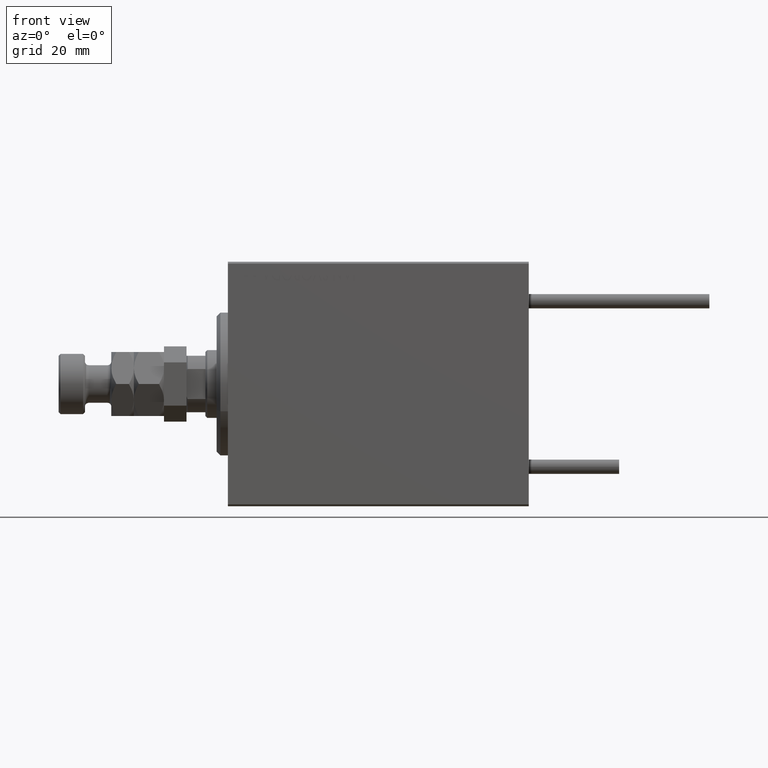
[diagram: clean part render]
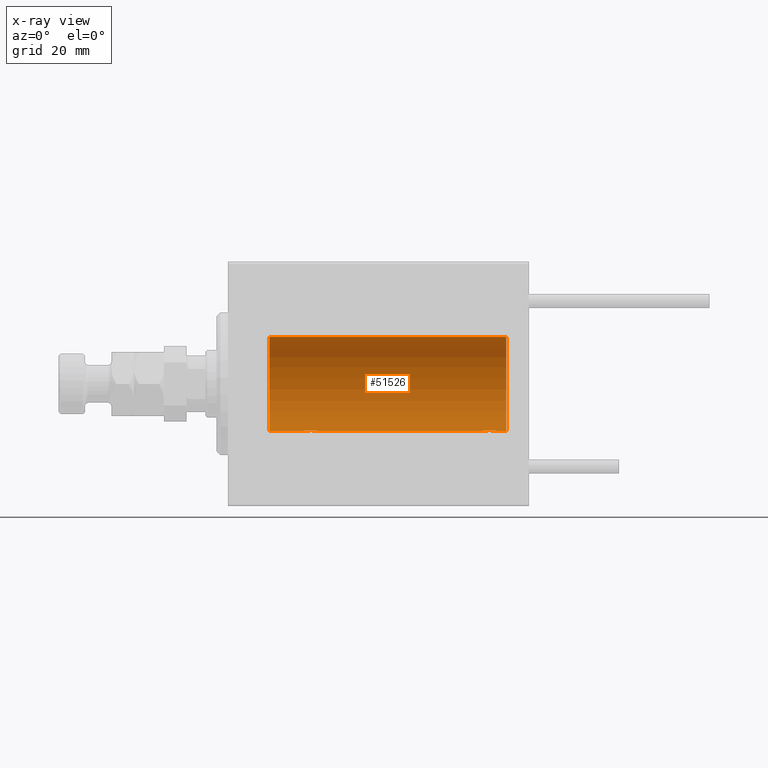
[diagram: x-ray — body ghosted, one internal face saturated and labeled with its STEP entity id]
A machine part, front view, then the same camera in x-ray: the body is ghosted and one INTERNAL B-rep face — a face not visible from any outside direction — is saturated and labeled: STEP entity #51526.
In plain terms, the highlighted cylindrical surface (partial cylindrical patch) has radius 12.5 mm, axis along (-1, -0, -0).
Its self-contained STEP definition (entity closure, byte-faithful):
#202 = CARTESIAN_POINT ( 'NONE',  ( 23.21980790594580313, 1.590288205413975309, -12.39864157855465088 ) ) ;
#411 = CARTESIAN_POINT ( 'NONE',  ( 70.71980790594581379, 1.590288205413965539, -12.39864157855464732 ) ) ;
#458 = CARTESIAN_POINT ( 'NONE',  ( 23.73470742397611843, 1.003863686549172352, -12.46009879577771606 ) ) ;
#946 = CIRCLE ( 'NONE', #37860, 12.50000000000000000 ) ;
#1200 = CARTESIAN_POINT ( 'NONE',  ( 71.29742491916155700, 0.8868029758979329991, -12.46909283808506430 ) ) ;
#4590 = CARTESIAN_POINT ( 'NONE',  ( 74.00000000000000000, 0.000000000000000000, 12.50000000000000000 ) ) ;
#4616 = CARTESIAN_POINT ( 'NONE',  ( 70.38656313533016373, 1.797558627508987428, -12.37018026341339016 ) ) ;
#4876 = CARTESIAN_POINT ( 'NONE',  ( 71.50000000000001421, 1.530808426270318106E-15, -12.50000000000000000 ) ) ;
#5141 = CARTESIAN_POINT ( 'NONE',  ( 69.76269462454600045, 1.986986967296526352, -12.34109209020653530 ) ) ;
#5880 = VECTOR ( 'NONE', #31029, 1000.000000000000000 ) ;
#6211 = CARTESIAN_POINT ( 'NONE',  ( 74.00000000000000000, 1.530808498934191521E-15, -12.50000000000000000 ) ) ;
#6895 = VERTEX_POINT ( 'NONE', #21530 ) ;
#7306 = CARTESIAN_POINT ( 'NONE',  ( 20.10252270298193622, 0.6455696738844897142, -12.48390768591463207 ) ) ;
#7568 = CARTESIAN_POINT ( 'NONE',  ( 19.99999999999999645, -3.966047509268588167E-15, -12.50000000000000000 ) ) ;
#7830 = CARTESIAN_POINT ( 'NONE',  ( 19.99999999999999645, 0.1323736289504319763, -12.50000000000000000 ) ) ;
#8085 = CARTESIAN_POINT ( 'NONE',  ( 22.51937350851555308, 1.935814255713574905, -12.34922241902463114 ) ) ;
#8349 = CARTESIAN_POINT ( 'NONE',  ( 24.00000000000000711, 0.1306394121199392910, -12.50000000000000533 ) ) ;
#8528 = LINE ( 'NONE', #4590, #12553 ) ;
#8558 = CARTESIAN_POINT ( 'NONE',  ( 70.01937350851554243, 1.935814255713560472, -12.34922241902463114 ) ) ;
#8812 = CARTESIAN_POINT ( 'NONE',  ( 71.23470742397613265, 1.003863686549164580, -12.46009879577771073 ) ) ;
#8953 = EDGE_CURVE ( 'NONE', #50680, #10642, #8528, .T. ) ;
#9331 = CARTESIAN_POINT ( 'NONE',  ( 70.14415233770294833, 1.897967064543078619, -12.35517291625592051 ) ) ;
#9587 = CARTESIAN_POINT ( 'NONE',  ( 67.51301208516348140, 0.2624928479599822340, -12.49789934882883458 ) ) ;
#10214 = EDGE_CURVE ( 'NONE', #6895, #49940, #47594, .T. ) ;
#10522 = ORIENTED_EDGE ( 'NONE', *, *, #17274, .T. ) ;
#10642 = VERTEX_POINT ( 'NONE', #47531 ) ;
#11042 = ORIENTED_EDGE ( 'NONE', *, *, #10214, .F. ) ;
#11438 = CARTESIAN_POINT ( 'NONE',  ( 74.00000000000000000, 1.530808498934191521E-15, -12.50000000000000000 ) ) ;
#11507 = CARTESIAN_POINT ( 'NONE',  ( 22.26269462454597914, 1.986986967296540119, -12.34109209020652465 ) ) ;
#11847 = AXIS2_PLACEMENT_3D ( 'NONE', #30828, #43182, #23205 ) ;
#12286 = CARTESIAN_POINT ( 'NONE',  ( 23.93561774521849728, 0.5201193324741352209, -12.48983485452574982 ) ) ;
#12499 = CARTESIAN_POINT ( 'NONE',  ( 67.70300788371383760, 0.8876934327478049891, -12.46903010196599659 ) ) ;
#12553 = VECTOR ( 'NONE', #20603, 1000.000000000000000 ) ;
#12713 = EDGE_CURVE ( 'NONE', #41686, #14970, #42210, .T. ) ;
#13543 = CARTESIAN_POINT ( 'NONE',  ( 67.56395648222637362, 0.5184196815545968340, -12.48990118705761354 ) ) ;
#14970 = VERTEX_POINT ( 'NONE', #17041 ) ;
#15458 = CARTESIAN_POINT ( 'NONE',  ( 20.26446744561862801, 1.002494658017155871, -12.46021263690096958 ) ) ;
#15585 = CYLINDRICAL_SURFACE ( 'NONE', #11847, 12.50000000000000000 ) ;
#15694 = CARTESIAN_POINT ( 'NONE',  ( 74.00000000000000000, 0.000000000000000000, 0.000000000000000000 ) ) ;
#16235 = CARTESIAN_POINT ( 'NONE',  ( 23.32102833500698225, 1.507394620545640773, -12.40913174964213184 ) ) ;
#16447 = CARTESIAN_POINT ( 'NONE',  ( 67.50000000000000000, 0.1323736289504252872, -12.50000000000000178 ) ) ;
#16495 = CARTESIAN_POINT ( 'NONE',  ( 24.00000000000000000, 1.530808426277417854E-15, -12.50000000000000000 ) ) ;
#16974 = CARTESIAN_POINT ( 'NONE',  ( 71.43561774521850793, 0.5201193324741325563, -12.48983485452575337 ) ) ;
#17041 = CARTESIAN_POINT ( 'NONE',  ( 10.99999999999999645, 1.530808498934191521E-15, -12.50000000000000000 ) ) ;
#17228 = CARTESIAN_POINT ( 'NONE',  ( 68.97436412829507901, 1.947190906025030976, -12.34781876294798408 ) ) ;
#17274 = EDGE_CURVE ( 'NONE', #41686, #33915, #47953, .T. ) ;
#17545 = CARTESIAN_POINT ( 'NONE',  ( 71.50000000000001421, 1.530808426270318106E-15, -12.50000000000000000 ) ) ;
#19054 = CARTESIAN_POINT ( 'NONE',  ( 67.50000000000000000, -8.176262823880599614E-15, -12.50000000000000000 ) ) ;
#19422 = CARTESIAN_POINT ( 'NONE',  ( 74.00000000000000000, 0.000000000000000000, 12.50000000000000000 ) ) ;
#20164 = CIRCLE ( 'NONE', #31071, 12.50000000000000000 ) ;
#20384 = CARTESIAN_POINT ( 'NONE',  ( 67.90963319990595437, 1.219754986802266128, -12.44082361696003503 ) ) ;
#20603 = DIRECTION ( 'NONE',  ( -1.000000000000000000, -0.000000000000000000, -0.000000000000000000 ) ) ;
#20633 = CARTESIAN_POINT ( 'NONE',  ( 71.39773031393660574, 0.6448065707252970125, -12.48394649977302429 ) ) ;
#20891 = CARTESIAN_POINT ( 'NONE',  ( 69.23788193668377744, 1.999901172190666765, -12.33897869807161385 ) ) ;
#21530 = CARTESIAN_POINT ( 'NONE',  ( 74.00000000000000000, 1.530808498934191521E-15, -12.50000000000000000 ) ) ;
#22231 = DIRECTION ( 'NONE',  ( -1.000000000000000000, -0.000000000000000000, -0.000000000000000000 ) ) ;
#23205 = DIRECTION ( 'NONE',  ( 0.000000000000000000, 0.000000000000000000, 1.000000000000000000 ) ) ;
#23605 = CARTESIAN_POINT ( 'NONE',  ( 20.01301208516349206, 0.2624928479599882847, -12.49789934882883458 ) ) ;
#23863 = CARTESIAN_POINT ( 'NONE',  ( 20.06395648222636652, 0.5184196815546032733, -12.48990118705761532 ) ) ;
#24454 = ORIENTED_EDGE ( 'NONE', *, *, #8953, .T. ) ;
#25862 = ORIENTED_EDGE ( 'NONE', *, *, #26238, .T. ) ;
#26238 = EDGE_CURVE ( 'NONE', #10642, #14970, #20164, .T. ) ;
#27109 = VECTOR ( 'NONE', #31155, 1000.000000000000000 ) ;
#27551 = CARTESIAN_POINT ( 'NONE',  ( 22.64415233770293412, 1.897967064543090165, -12.35517291625592051 ) ) ;
#27713 = B_SPLINE_CURVE_WITH_KNOTS ( 'NONE', 3,
 ( #33256, #16447, #9587, #13543, #49289, #12499, #36424, #20384, #44820, #41401, #41143, #17228, #20891, #45335, #5141, #8558, #9331, #4616, #29564, #411, #45597, #40877, #49042, #8812, #1200, #20633, #16974, #29041, #36939, #4876 ),
 .UNSPECIFIED., .F., .F.,
 ( 4, 2, 2, 2, 2, 2, 2, 2, 2, 2, 2, 2, 2, 2, 4 ),
 ( 1.893746017792005895E-18, 0.0003914362731607732410, 0.0007828725463215445305, 0.001174308819482315983, 0.001565745092643087326, 0.002348617638964600740, 0.003131490185286113937, 0.003522926458446871186, 0.003914362731607627134, 0.004305799004768384383, 0.004697235277929140765, 0.005088671551089898014, 0.005480107824250654396, 0.005871544097411410777, 0.006262980370572168026 ),
 .UNSPECIFIED. ) ;
#27995 = LINE ( 'NONE', #11438, #27109 ) ;
#28063 = CARTESIAN_POINT ( 'NONE',  ( 21.47436412829510033, 1.947190906025044077, -12.34781876294798053 ) ) ;
#28127 = VERTEX_POINT ( 'NONE', #19054 ) ;
#28318 = CARTESIAN_POINT ( 'NONE',  ( 23.98690384766256400, 0.2633501011236120681, -12.49788564268284041 ) ) ;
#29041 = CARTESIAN_POINT ( 'NONE',  ( 71.48690384766258887, 0.2633501011236116240, -12.49788564268284041 ) ) ;
#29564 = CARTESIAN_POINT ( 'NONE',  ( 70.50335814299182857, 1.734998657226755947, -12.37922086519035858 ) ) ;
#30828 = CARTESIAN_POINT ( 'NONE',  ( 74.00000000000000000, 0.000000000000000000, 0.000000000000000000 ) ) ;
#30935 = DIRECTION ( 'NONE',  ( -1.000000000000000000, 0.000000000000000000, 0.000000000000000000 ) ) ;
#31029 = DIRECTION ( 'NONE',  ( -1.000000000000000000, -0.000000000000000000, -0.000000000000000000 ) ) ;
#31071 = AXIS2_PLACEMENT_3D ( 'NONE', #38053, #42771, #46716 ) ;
#31155 = DIRECTION ( 'NONE',  ( -1.000000000000000000, -0.000000000000000000, -0.000000000000000000 ) ) ;
#31490 = CARTESIAN_POINT ( 'NONE',  ( 21.73788193668374902, 1.999901172190678533, -12.33897869807161385 ) ) ;
#31547 = VECTOR ( 'NONE', #22231, 1000.000000000000000 ) ;
#31754 = CARTESIAN_POINT ( 'NONE',  ( 23.00335814299181436, 1.734998657226765939, -12.37922086519035325 ) ) ;
#32272 = CARTESIAN_POINT ( 'NONE',  ( 23.50733550364322255, 1.321095788880538136, -12.43034574091277911 ) ) ;
#32424 = EDGE_CURVE ( 'NONE', #28127, #33915, #27995, .T. ) ;
#32622 = CARTESIAN_POINT ( 'NONE',  ( 19.99999999999999645, -3.966047509268588167E-15, -12.50000000000000000 ) ) ;
#33256 = CARTESIAN_POINT ( 'NONE',  ( 67.50000000000000000, -8.176262823880599614E-15, -12.50000000000000000 ) ) ;
#33915 = VERTEX_POINT ( 'NONE', #42112 ) ;
#35695 = CARTESIAN_POINT ( 'NONE',  ( 20.49398366327207910, 1.322451657002076120, -12.43019346654084956 ) ) ;
#35946 = ORIENTED_EDGE ( 'NONE', *, *, #50293, .T. ) ;
#36424 = CARTESIAN_POINT ( 'NONE',  ( 67.76446744561866353, 1.002494658017143658, -12.46021263690097136 ) ) ;
#36470 = CARTESIAN_POINT ( 'NONE',  ( 20.99316879552500481, 1.747608771958139906, -12.37764291807175354 ) ) ;
#36939 = CARTESIAN_POINT ( 'NONE',  ( 71.50000000000002842, 0.1306394121199379033, -12.50000000000000355 ) ) ;
#37860 = AXIS2_PLACEMENT_3D ( 'NONE', #15694, #30935, #43551 ) ;
#38053 = CARTESIAN_POINT ( 'NONE',  ( 10.99999999999999645, 0.000000000000000000, 0.000000000000000000 ) ) ;
#38614 = ORIENTED_EDGE ( 'NONE', *, *, #47946, .F. ) ;
#38977 = FACE_OUTER_BOUND ( 'NONE', #47122, .T. ) ;
#39165 = CARTESIAN_POINT ( 'NONE',  ( 74.00000000000000000, 1.530808498934191521E-15, -12.50000000000000000 ) ) ;
#39882 = CARTESIAN_POINT ( 'NONE',  ( 23.79742491916155700, 0.8868029758979399935, -12.46909283808506430 ) ) ;
#40141 = CARTESIAN_POINT ( 'NONE',  ( 20.40963319990594016, 1.219754986802279451, -12.44082361696003503 ) ) ;
#40877 = CARTESIAN_POINT ( 'NONE',  ( 71.00733550364323321, 1.321095788880530364, -12.43034574091278444 ) ) ;
#41143 = CARTESIAN_POINT ( 'NONE',  ( 68.49316879552500836, 1.747608771958125473, -12.37764291807175709 ) ) ;
#41157 = ORIENTED_EDGE ( 'NONE', *, *, #32424, .F. ) ;
#41401 = CARTESIAN_POINT ( 'NONE',  ( 68.27033506126851137, 1.598680238462352188, -12.39873273758732175 ) ) ;
#41686 = VERTEX_POINT ( 'NONE', #32622 ) ;
#42112 = CARTESIAN_POINT ( 'NONE',  ( 24.00000000000000000, 1.530808426277417854E-15, -12.50000000000000000 ) ) ;
#42210 = LINE ( 'NONE', #6211, #31547 ) ;
#42771 = DIRECTION ( 'NONE',  ( -1.000000000000000000, 0.000000000000000000, 0.000000000000000000 ) ) ;
#43182 = DIRECTION ( 'NONE',  ( -1.000000000000000000, -0.000000000000000000, -0.000000000000000000 ) ) ;
#43551 = DIRECTION ( 'NONE',  ( 0.000000000000000000, 0.000000000000000000, 1.000000000000000000 ) ) ;
#43570 = CARTESIAN_POINT ( 'NONE',  ( 22.88656313533016373, 1.797558627508998086, -12.37018026341338839 ) ) ;
#43832 = CARTESIAN_POINT ( 'NONE',  ( 23.58991408680628155, 1.220297236145721609, -12.44076681548080288 ) ) ;
#44089 = CARTESIAN_POINT ( 'NONE',  ( 22.12992629360264729, 2.000049200055402210, -12.33895470450623044 ) ) ;
#44820 = CARTESIAN_POINT ( 'NONE',  ( 67.99398366327211818, 1.322451657002059910, -12.43019346654085666 ) ) ;
#45335 = CARTESIAN_POINT ( 'NONE',  ( 69.62992629360266506, 2.000049200055388443, -12.33895470450623044 ) ) ;
#45597 = CARTESIAN_POINT ( 'NONE',  ( 70.82102833500700001, 1.507394620545632336, -12.40913174964213539 ) ) ;
#46716 = DIRECTION ( 'NONE',  ( 0.000000000000000000, 0.000000000000000000, 1.000000000000000000 ) ) ;
#47122 = EDGE_LOOP ( 'NONE', ( #11042, #38614, #24454, #25862, #50202, #10522, #41157, #35946 ) ) ;
#47531 = CARTESIAN_POINT ( 'NONE',  ( 10.99999999999999645, 0.000000000000000000, 12.50000000000000000 ) ) ;
#47594 = LINE ( 'NONE', #39165, #5880 ) ;
#47946 = EDGE_CURVE ( 'NONE', #50680, #6895, #946, .T. ) ;
#47953 = B_SPLINE_CURVE_WITH_KNOTS ( 'NONE', 3,
 ( #7568, #7830, #23605, #23863, #7306, #51472, #15458, #40141, #35695, #51723, #36470, #28063, #31490, #44089, #11507, #8085, #27551, #43570, #31754, #202, #16235, #32272, #43832, #458, #39882, #48309, #12286, #28318, #8349, #16495 ),
 .UNSPECIFIED., .F., .F.,
 ( 4, 2, 2, 2, 2, 2, 2, 2, 2, 2, 2, 2, 2, 2, 4 ),
 ( 3.611342868676865251E-19, 0.0003914362731607586585, 0.0007828725463215168833, 0.001174308819482275217, 0.001565745092643033550, 0.002348617638964549999, 0.003131490185286066666, 0.003522926458446830420, 0.003914362731607594174, 0.004305799004768357495, 0.004697235277929121683, 0.005088671551089885003, 0.005480107824250649191, 0.005871544097411412512, 0.006262980370572176700 ),
 .UNSPECIFIED. ) ;
#48309 = CARTESIAN_POINT ( 'NONE',  ( 23.89773031393658087, 0.6448065707253023415, -12.48394649977302073 ) ) ;
#49042 = CARTESIAN_POINT ( 'NONE',  ( 71.08991408680630286, 1.220297236145713393, -12.44076681548080821 ) ) ;
#49289 = CARTESIAN_POINT ( 'NONE',  ( 67.60252270298194333, 0.6455696738844840521, -12.48390768591463384 ) ) ;
#49940 = VERTEX_POINT ( 'NONE', #17545 ) ;
#50202 = ORIENTED_EDGE ( 'NONE', *, *, #12713, .F. ) ;
#50293 = EDGE_CURVE ( 'NONE', #28127, #49940, #27713, .T. ) ;
#50680 = VERTEX_POINT ( 'NONE', #19422 ) ;
#51472 = CARTESIAN_POINT ( 'NONE',  ( 20.20300788371381273, 0.8876934327478117615, -12.46903010196599304 ) ) ;
#51526 = ADVANCED_FACE ( 'NONE', ( #38977 ), #15585, .F. ) ;
#51723 = CARTESIAN_POINT ( 'NONE',  ( 20.77033506126850426, 1.598680238462369951, -12.39873273758732175 ) ) ;